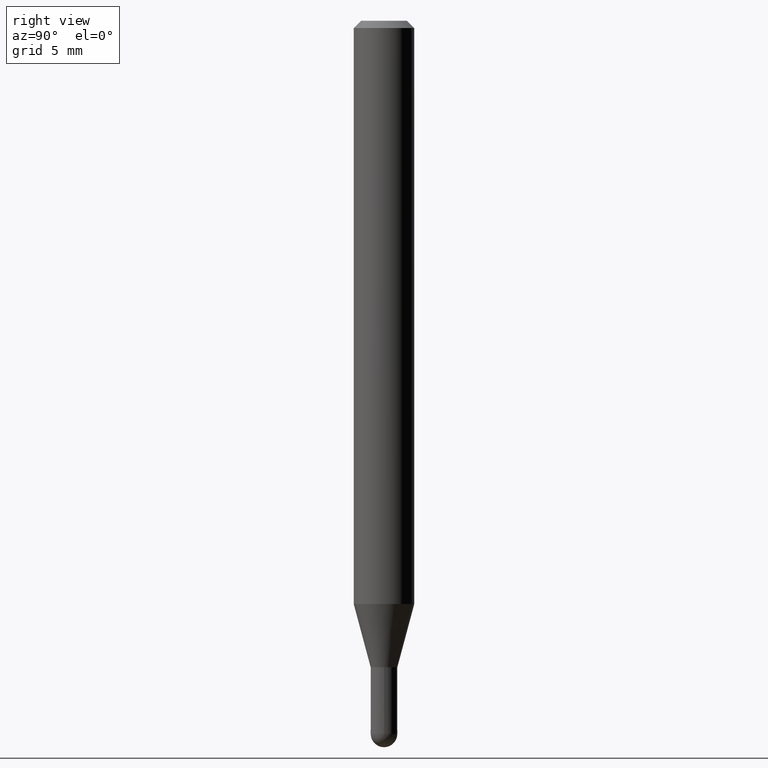
[diagram: clean part render]
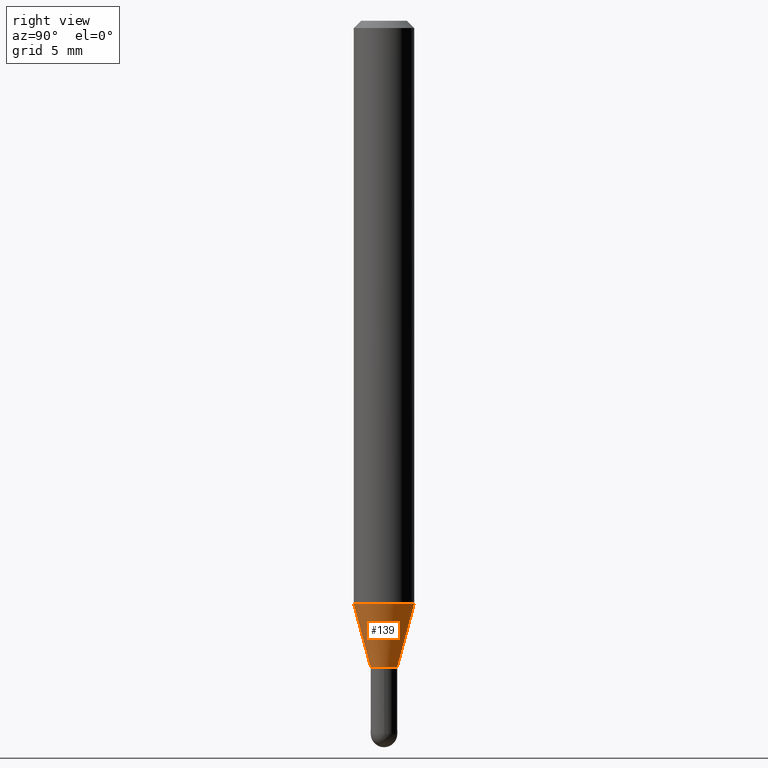
[diagram: same view with one face highlighted and labeled with its STEP entity id]
A machine part, right view. The second image highlights one B-rep face of the part: STEP entity #139.
In plain terms, the highlighted conical surface has half-angle 15 deg.
Its self-contained STEP definition (entity closure, byte-faithful):
#2 = DIRECTION ( 'NONE',  ( -6.982962677686265922E-15, -1.000000000000000000, 0.000000000000000000 ) ) ;
#13 = VECTOR ( 'NONE', #57, 39.37007874015748854 ) ;
#34 = CARTESIAN_POINT ( 'NONE',  ( 2.945260345494779582E-29, -4.205077012712332397E-15, -1.204378221735094456 ) ) ;
#57 = DIRECTION ( 'NONE',  ( 1.839019923739650408E-15, 0.2588190451025320082, 0.9659258262890650926 ) ) ;
#77 = DIRECTION ( 'NONE',  ( -6.982962677686265922E-15, -1.000000000000000000, 0.000000000000000000 ) ) ;
#80 = DIRECTION ( 'NONE',  ( -2.445461311357550980E-29, 3.491492071862827071E-15, 1.000000000000000000 ) ) ;
#88 = ORIENTED_EDGE ( 'NONE', *, *, #482, .F. ) ;
#92 = EDGE_CURVE ( 'NONE', #320, #273, #377, .T. ) ;
#96 = CARTESIAN_POINT ( 'NONE',  ( 1.953992523340615224E-16, 0.02749999999999553149, -1.335000000000000187 ) ) ;
#98 = CARTESIAN_POINT ( 'NONE',  ( -1.920314736363410365E-16, -0.02750000000000485390, -1.335000000000000187 ) ) ;
#103 = DIRECTION ( 'NONE',  ( -6.982962677686265922E-15, -1.000000000000000000, 4.370956789862821150E-15 ) ) ;
#107 = CARTESIAN_POINT ( 'NONE',  ( 3.197442310920768728E-16, 0.02749999999999553149, -1.335000000000000187 ) ) ;
#131 = EDGE_LOOP ( 'NONE', ( #178, #164, #88, #380 ) ) ;
#135 = DIRECTION ( 'NONE',  ( -1.807323732225379838E-15, -0.2588190451025252914, 0.9659258262890670910 ) ) ;
#139 = ADVANCED_FACE ( 'NONE', ( #398 ), #349, .T. ) ;
#164 = ORIENTED_EDGE ( 'NONE', *, *, #92, .T. ) ;
#178 = ORIENTED_EDGE ( 'NONE', *, *, #253, .T. ) ;
#184 = AXIS2_PLACEMENT_3D ( 'NONE', #203, #401, #2 ) ;
#203 = CARTESIAN_POINT ( 'NONE',  ( 3.264690850662330611E-29, -4.661141915936874380E-15, -1.335000000000000187 ) ) ;
#253 = EDGE_CURVE ( 'NONE', #497, #320, #428, .T. ) ;
#259 = AXIS2_PLACEMENT_3D ( 'NONE', #34, #304, #103 ) ;
#273 = VERTEX_POINT ( 'NONE', #325 ) ;
#291 = EDGE_CURVE ( 'NONE', #497, #492, #481, .T. ) ;
#304 = DIRECTION ( 'NONE',  ( -2.445461311357550980E-29, 3.491492071862827071E-15, 1.000000000000000000 ) ) ;
#320 = VERTEX_POINT ( 'NONE', #107 ) ;
#325 = CARTESIAN_POINT ( 'NONE',  ( 4.440892098500917054E-16, 0.06249999999999575340, -1.204378221735094678 ) ) ;
#341 = VECTOR ( 'NONE', #135, 39.37007874015748143 ) ;
#349 = CONICAL_SURFACE ( 'NONE', #184, 0.02750000000000019443, 0.2617993877991576235 ) ;
#361 = AXIS2_PLACEMENT_3D ( 'NONE', #511, #80, #77 ) ;
#377 = LINE ( 'NONE', #96, #13 ) ;
#380 = ORIENTED_EDGE ( 'NONE', *, *, #291, .F. ) ;
#381 = CARTESIAN_POINT ( 'NONE',  ( -4.364351673553623336E-16, -0.06250000000000423273, -1.204378221735094234 ) ) ;
#385 = CARTESIAN_POINT ( 'NONE',  ( -1.920314736363410365E-16, -0.02750000000000485390, -1.335000000000000187 ) ) ;
#398 = FACE_OUTER_BOUND ( 'NONE', #131, .T. ) ;
#401 = DIRECTION ( 'NONE',  ( -2.445461311357550980E-29, 3.491492071862827071E-15, 1.000000000000000000 ) ) ;
#428 = CIRCLE ( 'NONE', #361, 0.02750000000000019443 ) ;
#474 = CIRCLE ( 'NONE', #259, 0.06250000000000000000 ) ;
#481 = LINE ( 'NONE', #98, #341 ) ;
#482 = EDGE_CURVE ( 'NONE', #492, #273, #474, .T. ) ;
#492 = VERTEX_POINT ( 'NONE', #381 ) ;
#497 = VERTEX_POINT ( 'NONE', #385 ) ;
#511 = CARTESIAN_POINT ( 'NONE',  ( 3.264690850662330611E-29, -4.661141915936874380E-15, -1.335000000000000187 ) ) ;